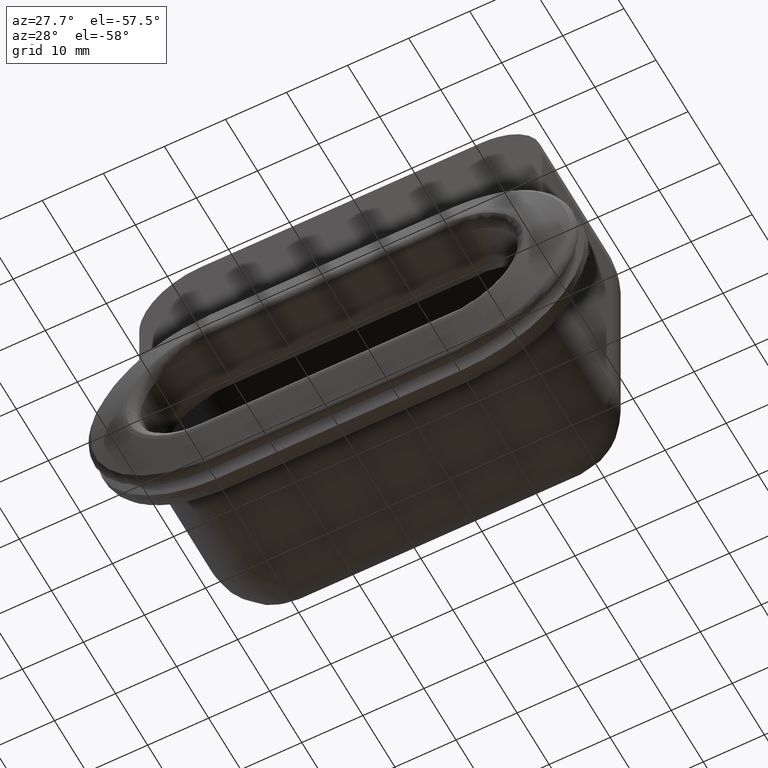
[diagram: clean part render]
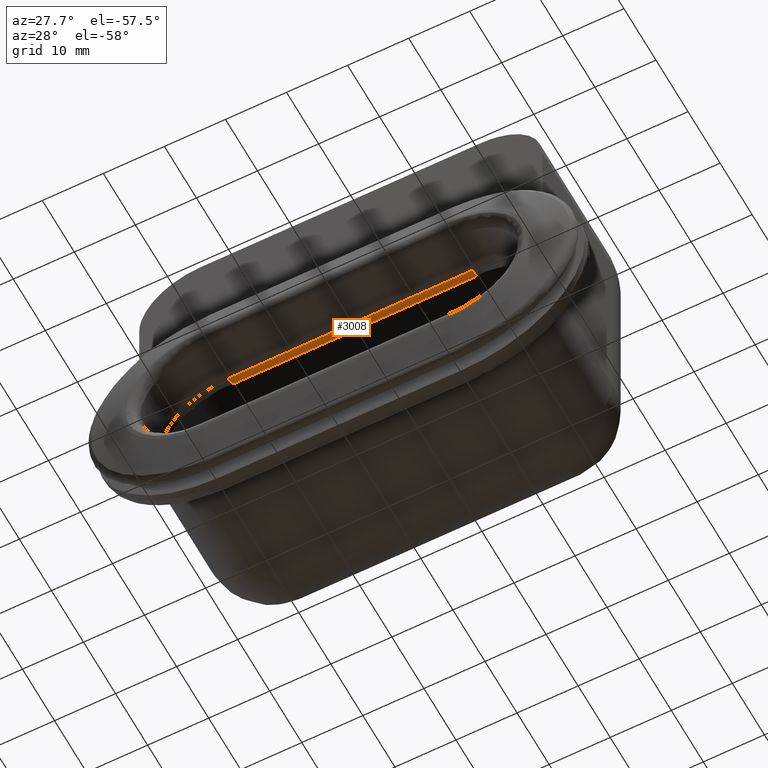
[diagram: same view with one face highlighted and labeled with its STEP entity id]
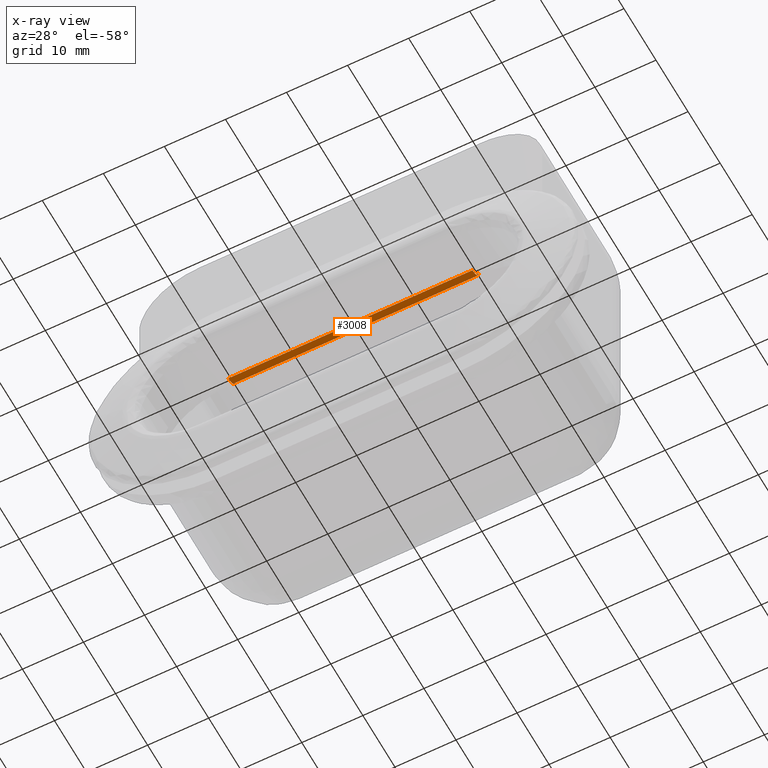
[diagram: x-ray of the same camera — body ghosted, the highlighted face saturated]
A machine part, auxiliary view. The second image highlights one B-rep face of the part: STEP entity #3008.
The next image is the same camera in x-ray: the body ghosted, the highlighted face saturated — about 0% of this face is hidden behind the body in this view.
In plain terms, the highlighted face is a freeform B-spline surface patch.
Its self-contained STEP definition (entity closure, byte-faithful):
#2891=CARTESIAN_POINT('',(-20.0,10.0,13.0));
#2892=VERTEX_POINT('',#2891);
#2893=CARTESIAN_POINT('',(-20.0,8.0,11.0));
#2894=VERTEX_POINT('',#2893);
#2895=CARTESIAN_POINT('',(-20.0,10.0,13.0));
#2896=CARTESIAN_POINT('',(-19.999999999999996,10.000000000000002,11.0));
#2897=CARTESIAN_POINT('',(-20.0,8.0,11.0));
#2905=(BOUNDED_CURVE()B_SPLINE_CURVE(2,(#2895,#2896,#2897),.UNSPECIFIED.,.F.,.U.)CURVE()GEOMETRIC_REPRESENTATION_ITEM()QUASI_UNIFORM_CURVE()RATIONAL_B_SPLINE_CURVE((1.0,0.707106781186548,1.0))REPRESENTATION_ITEM(''));
#2906=EDGE_CURVE('',#2892,#2894,#2905,.T.);
#2964=CARTESIAN_POINT('',(-21.0,9.998096443163714,13.087238774730670));
#2965=CARTESIAN_POINT('',(21.024999999999999,9.998096443163714,13.087238774730670));
#2966=CARTESIAN_POINT('',(-21.000000000000004,10.095868981871968,10.847879471081930));
#2967=CARTESIAN_POINT('',(21.025000000000006,10.095868981871968,10.847879471081930));
#2968=CARTESIAN_POINT('',(-21.000000000000004,7.859883815912956,11.004914173536164));
#2969=CARTESIAN_POINT('',(21.025000000000002,7.859883815912956,11.004914173536164));
#2977=(BOUNDED_SURFACE()B_SPLINE_SURFACE(1,2,((#2964,#2966,#2968),(#2965,#2967,#2969)),.UNSPECIFIED.,.F.,.F.,.U.)B_SPLINE_SURFACE_WITH_KNOTS((2,2),(3,3),(0.0,42.025000000000013),(0.0,3.583485079683970),.UNSPECIFIED.)GEOMETRIC_REPRESENTATION_ITEM()RATIONAL_B_SPLINE_SURFACE(((1.0,0.664513898535122,0.996233561259061),(1.0,0.664513898535122,0.996233561259061)))REPRESENTATION_ITEM('')SURFACE());
#2978=CARTESIAN_POINT('',(20.0,10.0,13.0));
#2979=VERTEX_POINT('',#2978);
#2980=CARTESIAN_POINT('',(20.0,8.0,11.0));
#2981=VERTEX_POINT('',#2980);
#2982=CARTESIAN_POINT('',(20.0,10.0,13.0));
#2983=CARTESIAN_POINT('',(19.999999999999996,10.000000000000002,11.0));
#2984=CARTESIAN_POINT('',(20.0,8.0,11.0));
#2992=(BOUNDED_CURVE()B_SPLINE_CURVE(2,(#2982,#2983,#2984),.UNSPECIFIED.,.F.,.U.)CURVE()GEOMETRIC_REPRESENTATION_ITEM()QUASI_UNIFORM_CURVE()RATIONAL_B_SPLINE_CURVE((1.0,0.707106781186548,1.0))REPRESENTATION_ITEM(''));
#2993=EDGE_CURVE('',#2979,#2981,#2992,.T.);
#2994=ORIENTED_EDGE('',*,*,#2993,.T.);
#2995=CARTESIAN_POINT('',(-20.0,8.0,11.0));
#2996=CARTESIAN_POINT('',(20.0,8.0,11.0));
#2997=QUASI_UNIFORM_CURVE('',1,(#2995,#2996),.UNSPECIFIED.,.F.,.U.);
#2998=EDGE_CURVE('',#2894,#2981,#2997,.T.);
#2999=ORIENTED_EDGE('',*,*,#2998,.F.);
#3000=ORIENTED_EDGE('',*,*,#2906,.F.);
#3001=CARTESIAN_POINT('',(20.0,10.0,13.0));
#3002=CARTESIAN_POINT('',(-20.0,10.0,13.0));
#3003=QUASI_UNIFORM_CURVE('',1,(#3001,#3002),.UNSPECIFIED.,.F.,.U.);
#3004=EDGE_CURVE('',#2979,#2892,#3003,.T.);
#3005=ORIENTED_EDGE('',*,*,#3004,.F.);
#3006=EDGE_LOOP('',(#2994,#2999,#3000,#3005));
#3007=FACE_OUTER_BOUND('',#3006,.T.);
#3008=ADVANCED_FACE('',(#3007),#2977,.T.);